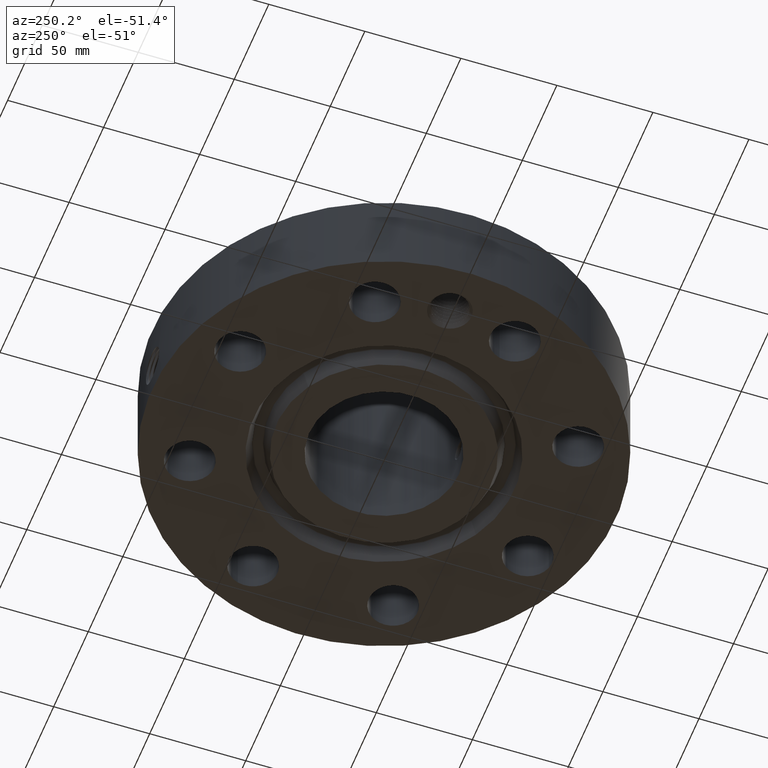
[diagram: clean part render]
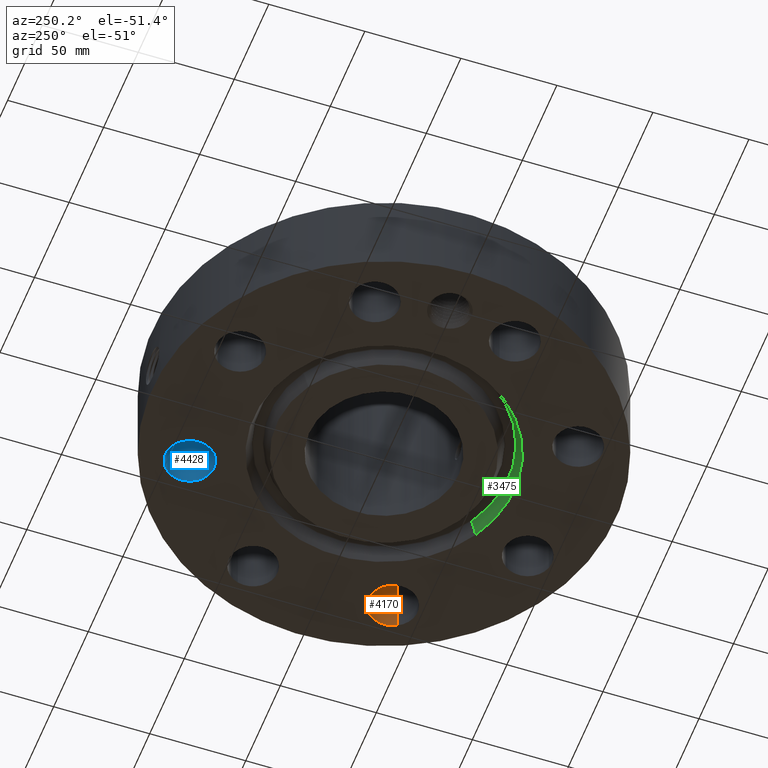
[diagram: same view with three faces highlighted in distinct colors, each labeled with its STEP entity id]
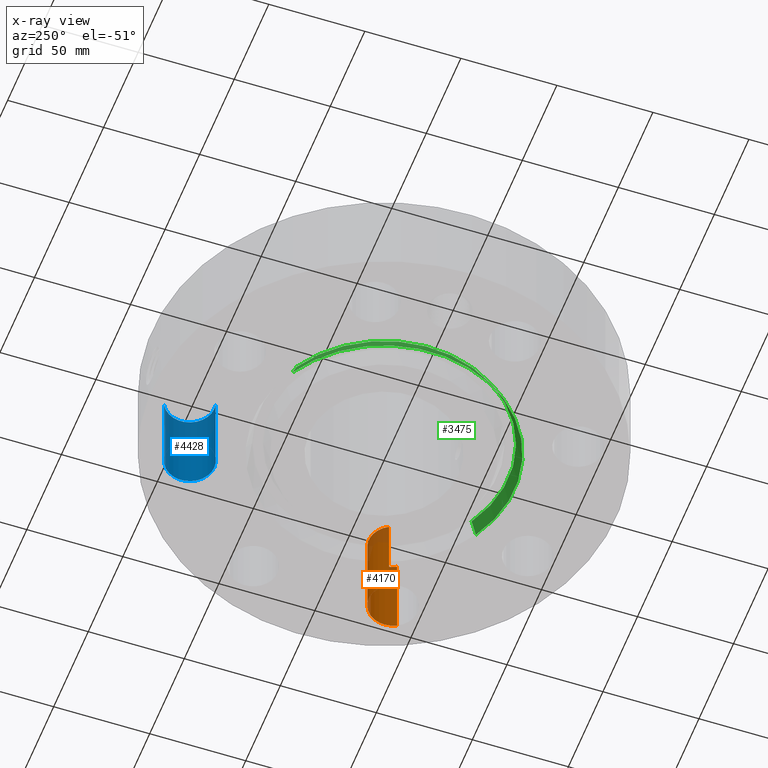
[diagram: x-ray of the same camera — body ghosted, the three highlighted faces saturated]
A machine part, auxiliary view with three faces highlighted in distinct colors.
The next image is the same camera in x-ray (body ghosted, the three faces saturated) — at least one of them is partly hidden behind the body in this view.
Their STEP definitions:

[orange] entity #4170 — the highlighted cylindrical surface (edge-blend (fillet) strip) has radius 12.7 mm, axis along (0, -0, -1).
#2954=AXIS2_PLACEMENT_3D('Circle Axis2P3D',#2952,#2953,$) ;
#4131=AXIS2_PLACEMENT_3D('Cylinder Axis2P3D',#4128,#4129,#4130) ;
#4161=AXIS2_PLACEMENT_3D('Circle Axis2P3D',#4159,#4160,$) ;
#2952=CARTESIAN_POINT('Axis2P3D Location',(3.46454824693,-1.43506287137,1.81200000001)) ;
#2956=CARTESIAN_POINT('Vertex',(3.02575696598,-1.19535010207,1.81200000001)) ;
#2958=CARTESIAN_POINT('Vertex',(3.90333952788,-1.67477564068,1.81200000001)) ;
#4128=CARTESIAN_POINT('Axis2P3D Location',(3.46454824693,-1.43506287137,1.80806299213)) ;
#4133=CARTESIAN_POINT('Line Origine',(3.90333952788,-1.67477564068,0.906000000004)) ;
#4137=CARTESIAN_POINT('Vertex',(3.90333952788,-1.67477564068,0.)) ;
#4144=CARTESIAN_POINT('Vertex',(3.02575696598,-1.19535010207,0.)) ;
#4147=CARTESIAN_POINT('Line Origine',(3.02575696598,-1.19535010207,0.906000000004)) ;
#4159=CARTESIAN_POINT('Axis2P3D Location',(3.46454824693,-1.43506287137,0.)) ;
#2953=DIRECTION('Axis2P3D Direction',(0.,0.,-0.0393700787402)) ;
#4129=DIRECTION('Axis2P3D Direction',(0.,-0.,-0.0393700787402)) ;
#4130=DIRECTION('Axis2P3D XDirection',(-0.0345504945626,0.0188750212049,0.)) ;
#4134=DIRECTION('Vector Direction',(0.,0.,-0.0393700787402)) ;
#4148=DIRECTION('Vector Direction',(0.,0.,-0.0393700787402)) ;
#4160=DIRECTION('Axis2P3D Direction',(0.,-0.,-0.0393700787402)) ;
#4135=VECTOR('Line Direction',#4134,0.0393700787402) ;
#4149=VECTOR('Line Direction',#4148,0.0393700787402) ;
#4165=ORIENTED_EDGE('',*,*,#4151,.F.) ;
#4166=ORIENTED_EDGE('',*,*,#4163,.T.) ;
#4167=ORIENTED_EDGE('',*,*,#4139,.T.) ;
#4168=ORIENTED_EDGE('',*,*,#2960,.F.) ;
#4170=ADVANCED_FACE('PartBody',(#4169),#4132,.F.) ;
#2955=CIRCLE('generated circle',#2954,0.500000000002) ;
#4162=CIRCLE('generated circle',#4161,0.500000000002) ;
#4132=CYLINDRICAL_SURFACE('generated cylinder',#4131,0.500000000002) ;
#2960=EDGE_CURVE('',#2957,#2959,#2955,.T.) ;
#4139=EDGE_CURVE('',#4138,#2959,#4136,.F.) ;
#4151=EDGE_CURVE('',#4145,#2957,#4150,.F.) ;
#4163=EDGE_CURVE('',#4145,#4138,#4162,.T.) ;
#4164=EDGE_LOOP('',(#4165,#4166,#4167,#4168)) ;
#4169=FACE_OUTER_BOUND('',#4164,.T.) ;
#4136=LINE('Line',#4133,#4135) ;
#4150=LINE('Line',#4147,#4149) ;
#2957=VERTEX_POINT('',#2956) ;
#2959=VERTEX_POINT('',#2958) ;
#4138=VERTEX_POINT('',#4137) ;
#4145=VERTEX_POINT('',#4144) ;

[blue] entity #4428 — the highlighted cylindrical surface (edge-blend (fillet) strip) has radius 12.7 mm, axis along (0, 0, -1).
#3066=AXIS2_PLACEMENT_3D('Circle Axis2P3D',#3064,#3065,$) ;
#4389=AXIS2_PLACEMENT_3D('Cylinder Axis2P3D',#4386,#4387,#4388) ;
#4419=AXIS2_PLACEMENT_3D('Circle Axis2P3D',#4417,#4418,$) ;
#3064=CARTESIAN_POINT('Axis2P3D Location',(1.43506287137,3.46454824693,1.81200000001)) ;
#3068=CARTESIAN_POINT('Vertex',(1.67477564068,3.90333952788,1.81200000001)) ;
#3070=CARTESIAN_POINT('Vertex',(1.19535010207,3.02575696598,1.81200000001)) ;
#4386=CARTESIAN_POINT('Axis2P3D Location',(1.43506287137,3.46454824693,1.80806299213)) ;
#4391=CARTESIAN_POINT('Line Origine',(1.19535010207,3.02575696598,0.906000000004)) ;
#4395=CARTESIAN_POINT('Vertex',(1.19535010207,3.02575696598,0.)) ;
#4402=CARTESIAN_POINT('Vertex',(1.67477564068,3.90333952788,0.)) ;
#4405=CARTESIAN_POINT('Line Origine',(1.67477564068,3.90333952788,0.906000000004)) ;
#4417=CARTESIAN_POINT('Axis2P3D Location',(1.43506287137,3.46454824693,0.)) ;
#3065=DIRECTION('Axis2P3D Direction',(0.,0.,-0.0393700787402)) ;
#4387=DIRECTION('Axis2P3D Direction',(0.,0.,-0.0393700787402)) ;
#4388=DIRECTION('Axis2P3D XDirection',(0.0188750212049,0.0345504945626,0.)) ;
#4392=DIRECTION('Vector Direction',(0.,0.,-0.0393700787402)) ;
#4406=DIRECTION('Vector Direction',(0.,0.,-0.0393700787402)) ;
#4418=DIRECTION('Axis2P3D Direction',(0.,0.,-0.0393700787402)) ;
#4393=VECTOR('Line Direction',#4392,0.0393700787402) ;
#4407=VECTOR('Line Direction',#4406,0.0393700787402) ;
#4423=ORIENTED_EDGE('',*,*,#4409,.F.) ;
#4424=ORIENTED_EDGE('',*,*,#4421,.T.) ;
#4425=ORIENTED_EDGE('',*,*,#4397,.T.) ;
#4426=ORIENTED_EDGE('',*,*,#3072,.F.) ;
#4428=ADVANCED_FACE('PartBody',(#4427),#4390,.F.) ;
#3067=CIRCLE('generated circle',#3066,0.500000000002) ;
#4420=CIRCLE('generated circle',#4419,0.500000000002) ;
#4390=CYLINDRICAL_SURFACE('generated cylinder',#4389,0.500000000002) ;
#3072=EDGE_CURVE('',#3069,#3071,#3067,.T.) ;
#4397=EDGE_CURVE('',#4396,#3071,#4394,.F.) ;
#4409=EDGE_CURVE('',#4403,#3069,#4408,.F.) ;
#4421=EDGE_CURVE('',#4403,#4396,#4420,.T.) ;
#4422=EDGE_LOOP('',(#4423,#4424,#4425,#4426)) ;
#4427=FACE_OUTER_BOUND('',#4422,.T.) ;
#4394=LINE('Line',#4391,#4393) ;
#4408=LINE('Line',#4405,#4407) ;
#3069=VERTEX_POINT('',#3068) ;
#3071=VERTEX_POINT('',#3070) ;
#4396=VERTEX_POINT('',#4395) ;
#4403=VERTEX_POINT('',#4402) ;

[green] entity #3475 — the highlighted conical surface has half-angle 23 deg.
#2635=AXIS2_PLACEMENT_3D('Circle Axis2P3D',#2633,#2634,$) ;
#3436=AXIS2_PLACEMENT_3D('Cone Axis2P3D',#3433,#3434,#3435) ;
#3466=AXIS2_PLACEMENT_3D('Circle Axis2P3D',#3464,#3465,$) ;
#2611=CARTESIAN_POINT('Vertex',(1.22125143094,-2.23548574945,0.293721933856)) ;
#2613=CARTESIAN_POINT('Vertex',(-1.22125143094,2.23548574945,0.293721933856)) ;
#2633=CARTESIAN_POINT('Axis2P3D Location',(0.,0.,0.293721933856)) ;
#3433=CARTESIAN_POINT('Axis2P3D Location',(0.,0.,0.293721933856)) ;
#3442=CARTESIAN_POINT('Vertex',(-1.28102503916,2.34490060538,0.)) ;
#3444=CARTESIAN_POINT('Vertex',(1.28102503916,-2.34490060538,0.)) ;
#3447=CARTESIAN_POINT('Line Origine',(1.25113823505,-2.29019317742,0.146860966928)) ;
#3452=CARTESIAN_POINT('Line Origine',(-1.25113823505,2.29019317742,0.146860966928)) ;
#3464=CARTESIAN_POINT('Axis2P3D Location',(0.,0.,0.)) ;
#2634=DIRECTION('Axis2P3D Direction',(0.,0.,0.0393700787402)) ;
#3434=DIRECTION('Axis2P3D Direction',(-0.,-0.,-0.0393700787402)) ;
#3435=DIRECTION('Axis2P3D XDirection',(0.0188750212049,-0.0345504945626,0.)) ;
#3448=DIRECTION('Vector Direction',(0.00737505833565,-0.0134999537303,-0.0362403485611)) ;
#3453=DIRECTION('Vector Direction',(-0.00737505833565,0.0134999537303,-0.0362403485611)) ;
#3465=DIRECTION('Axis2P3D Direction',(0.,0.,-0.0393700787402)) ;
#3449=VECTOR('Line Direction',#3448,0.0393700787402) ;
#3454=VECTOR('Line Direction',#3453,0.0393700787402) ;
#3470=ORIENTED_EDGE('',*,*,#3468,.T.) ;
#3471=ORIENTED_EDGE('',*,*,#3456,.T.) ;
#3472=ORIENTED_EDGE('',*,*,#2637,.T.) ;
#3473=ORIENTED_EDGE('',*,*,#3451,.F.) ;
#3475=ADVANCED_FACE('PartBody',(#3474),#3437,.F.) ;
#2636=CIRCLE('generated circle',#2635,2.54732243612) ;
#3467=CIRCLE('generated circle',#3466,2.67200000001) ;
#3437=CONICAL_SURFACE('Cone',#3436,2.54732243612,0.401425727959) ;
#2637=EDGE_CURVE('',#2614,#2612,#2636,.T.) ;
#3451=EDGE_CURVE('',#3445,#2612,#3450,.F.) ;
#3456=EDGE_CURVE('',#3443,#2614,#3455,.F.) ;
#3468=EDGE_CURVE('',#3445,#3443,#3467,.T.) ;
#3469=EDGE_LOOP('',(#3470,#3471,#3472,#3473)) ;
#3474=FACE_OUTER_BOUND('',#3469,.T.) ;
#3450=LINE('Line',#3447,#3449) ;
#3455=LINE('Line',#3452,#3454) ;
#2612=VERTEX_POINT('',#2611) ;
#2614=VERTEX_POINT('',#2613) ;
#3443=VERTEX_POINT('',#3442) ;
#3445=VERTEX_POINT('',#3444) ;